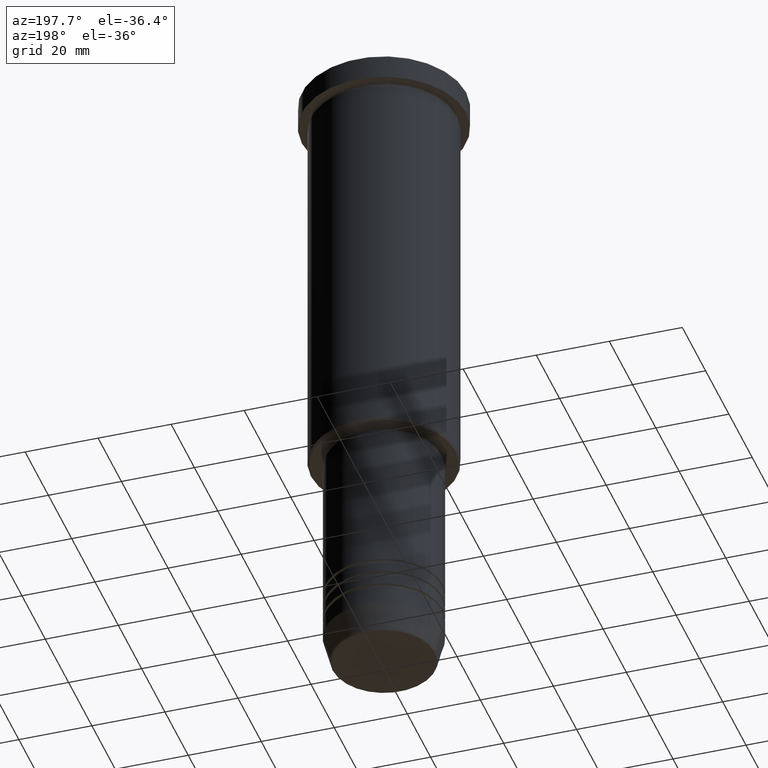
[diagram: clean part render]
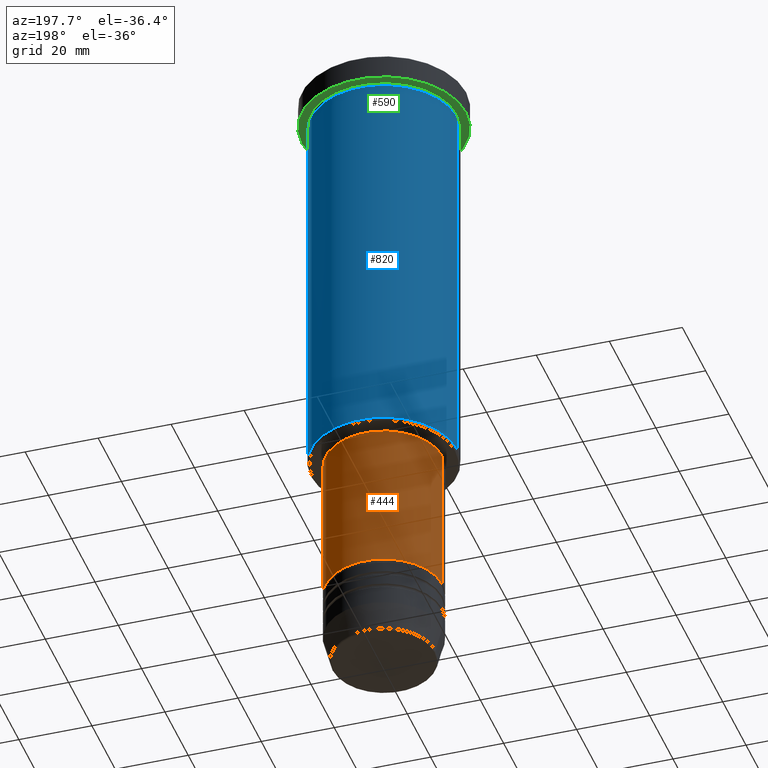
[diagram: same view with three faces highlighted in distinct colors, each labeled with its STEP entity id]
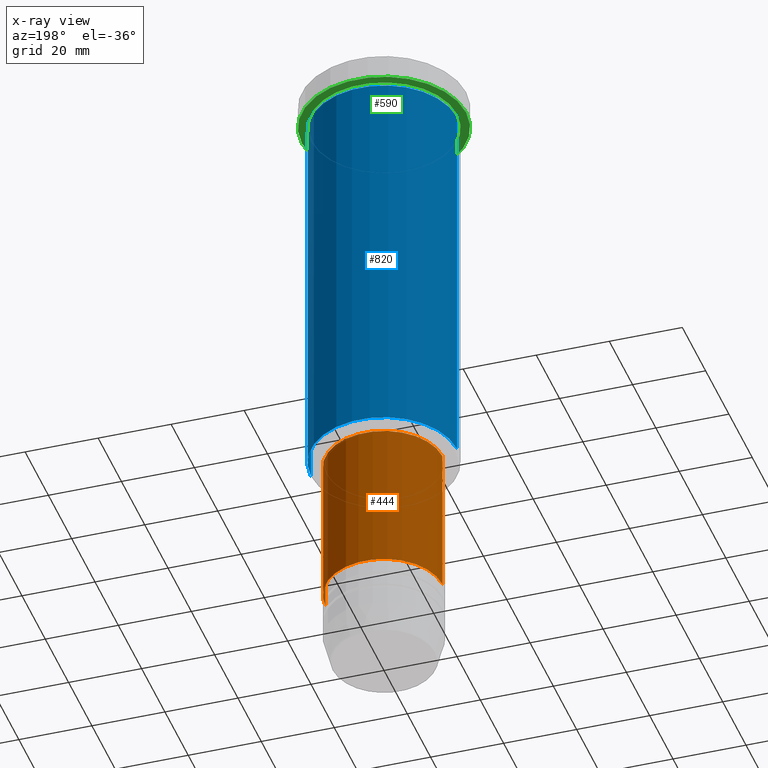
[diagram: x-ray of the same camera — body ghosted, the three highlighted faces saturated]
A machine part, auxiliary view with three faces highlighted in distinct colors.
The next image is the same camera in x-ray (body ghosted, the three faces saturated) — at least one of them is partly hidden behind the body in this view.
Their STEP definitions:

[orange] entity #444 — the highlighted cylindrical surface (partial cylindrical patch) has radius 16 mm, axis along (-0, -0, 1).
#110 = CARTESIAN_POINT ( 'NONE',  ( -16.00000000000000000, 1.959434878635765131E-15, 0.000000000000000000 ) ) ;
#115 = ORIENTED_EDGE ( 'NONE', *, *, #794, .T. ) ;
#134 = DIRECTION ( 'NONE',  ( 1.000000000000000000, 0.000000000000000000, 0.000000000000000000 ) ) ;
#196 = VECTOR ( 'NONE', #1005, 1000.000000000000000 ) ;
#248 = ORIENTED_EDGE ( 'NONE', *, *, #333, .T. ) ;
#333 = EDGE_CURVE ( 'NONE', #1024, #402, #928, .T. ) ;
#383 = DIRECTION ( 'NONE',  ( 1.000000000000000000, 0.000000000000000000, 0.000000000000000000 ) ) ;
#402 = VERTEX_POINT ( 'NONE', #569 ) ;
#414 = CARTESIAN_POINT ( 'NONE',  ( -16.00000000000000000, 1.959434878635765131E-15, -158.5000000000000000 ) ) ;
#433 = CARTESIAN_POINT ( 'NONE',  ( 16.00000000000000000, 0.000000000000000000, -158.5000000000000000 ) ) ;
#444 = ADVANCED_FACE ( 'NONE', ( #960 ), #579, .T. ) ;
#453 = AXIS2_PLACEMENT_3D ( 'NONE', #1039, #955, #134 ) ;
#515 = CARTESIAN_POINT ( 'NONE',  ( 16.00000000000000000, 0.000000000000000000, 0.000000000000000000 ) ) ;
#559 = CARTESIAN_POINT ( 'NONE',  ( 16.00000000000000000, 0.000000000000000000, -117.0000000000000142 ) ) ;
#567 = DIRECTION ( 'NONE',  ( -0.000000000000000000, -0.000000000000000000, 1.000000000000000000 ) ) ;
#569 = CARTESIAN_POINT ( 'NONE',  ( -16.00000000000000000, 1.959434878635765131E-15, -117.0000000000000142 ) ) ;
#579 = CYLINDRICAL_SURFACE ( 'NONE', #453, 16.00000000000000000 ) ;
#583 = CARTESIAN_POINT ( 'NONE',  ( 0.000000000000000000, 0.000000000000000000, -117.0000000000000142 ) ) ;
#653 = DIRECTION ( 'NONE',  ( 1.000000000000000000, 0.000000000000000000, 0.000000000000000000 ) ) ;
#689 = VERTEX_POINT ( 'NONE', #433 ) ;
#699 = AXIS2_PLACEMENT_3D ( 'NONE', #583, #567, #653 ) ;
#701 = VECTOR ( 'NONE', #1068, 1000.000000000000000 ) ;
#794 = EDGE_CURVE ( 'NONE', #689, #1024, #1158, .T. ) ;
#801 = VERTEX_POINT ( 'NONE', #559 ) ;
#802 = EDGE_CURVE ( 'NONE', #801, #402, #1012, .T. ) ;
#859 = DIRECTION ( 'NONE',  ( -0.000000000000000000, -0.000000000000000000, 1.000000000000000000 ) ) ;
#866 = ORIENTED_EDGE ( 'NONE', *, *, #1018, .F. ) ;
#928 = LINE ( 'NONE', #110, #196 ) ;
#955 = DIRECTION ( 'NONE',  ( -0.000000000000000000, -0.000000000000000000, 1.000000000000000000 ) ) ;
#958 = LINE ( 'NONE', #515, #701 ) ;
#959 = EDGE_LOOP ( 'NONE', ( #115, #248, #1067, #866 ) ) ;
#960 = FACE_OUTER_BOUND ( 'NONE', #959, .T. ) ;
#1005 = DIRECTION ( 'NONE',  ( -0.000000000000000000, -0.000000000000000000, 1.000000000000000000 ) ) ;
#1012 = CIRCLE ( 'NONE', #699, 16.00000000000000000 ) ;
#1018 = EDGE_CURVE ( 'NONE', #689, #801, #958, .T. ) ;
#1024 = VERTEX_POINT ( 'NONE', #414 ) ;
#1038 = CARTESIAN_POINT ( 'NONE',  ( 0.000000000000000000, 0.000000000000000000, -158.5000000000000000 ) ) ;
#1039 = CARTESIAN_POINT ( 'NONE',  ( 0.000000000000000000, 0.000000000000000000, 0.000000000000000000 ) ) ;
#1067 = ORIENTED_EDGE ( 'NONE', *, *, #802, .F. ) ;
#1068 = DIRECTION ( 'NONE',  ( -0.000000000000000000, -0.000000000000000000, 1.000000000000000000 ) ) ;
#1138 = AXIS2_PLACEMENT_3D ( 'NONE', #1038, #859, #383 ) ;
#1158 = CIRCLE ( 'NONE', #1138, 16.00000000000000000 ) ;

[blue] entity #820 — the highlighted cylindrical surface (partial cylindrical patch) has radius 20 mm, axis along (-0, -0, 1).
#1 = LINE ( 'NONE', #353, #578 ) ;
#17 = DIRECTION ( 'NONE',  ( -0.000000000000000000, -0.000000000000000000, 1.000000000000000000 ) ) ;
#70 = CARTESIAN_POINT ( 'NONE',  ( 0.000000000000000000, 0.000000000000000000, -7.999999999999994671 ) ) ;
#71 = AXIS2_PLACEMENT_3D ( 'NONE', #813, #17, #1095 ) ;
#133 = EDGE_LOOP ( 'NONE', ( #286, #679, #523, #979 ) ) ;
#195 = VERTEX_POINT ( 'NONE', #898 ) ;
#197 = FACE_OUTER_BOUND ( 'NONE', #133, .T. ) ;
#215 = DIRECTION ( 'NONE',  ( 1.000000000000000000, 0.000000000000000000, 0.000000000000000000 ) ) ;
#245 = EDGE_CURVE ( 'NONE', #195, #861, #573, .T. ) ;
#264 = CARTESIAN_POINT ( 'NONE',  ( -20.00000000000000355, 2.449293598294706907E-15, -115.5000000000000142 ) ) ;
#269 = EDGE_CURVE ( 'NONE', #462, #651, #592, .T. ) ;
#273 = LINE ( 'NONE', #432, #951 ) ;
#286 = ORIENTED_EDGE ( 'NONE', *, *, #269, .T. ) ;
#353 = CARTESIAN_POINT ( 'NONE',  ( -20.00000000000000355, 2.449293598294706907E-15, 0.000000000000000000 ) ) ;
#432 = CARTESIAN_POINT ( 'NONE',  ( 20.00000000000000355, 0.000000000000000000, 0.000000000000000000 ) ) ;
#455 = AXIS2_PLACEMENT_3D ( 'NONE', #934, #754, #215 ) ;
#462 = VERTEX_POINT ( 'NONE', #710 ) ;
#475 = CARTESIAN_POINT ( 'NONE',  ( -20.00000000000000000, 2.449293598294706513E-15, -7.999999999999994671 ) ) ;
#523 = ORIENTED_EDGE ( 'NONE', *, *, #245, .F. ) ;
#527 = DIRECTION ( 'NONE',  ( -0.000000000000000000, -0.000000000000000000, 1.000000000000000000 ) ) ;
#573 = CIRCLE ( 'NONE', #595, 20.00000000000000000 ) ;
#578 = VECTOR ( 'NONE', #714, 1000.000000000000000 ) ;
#592 = CIRCLE ( 'NONE', #71, 20.00000000000000355 ) ;
#595 = AXIS2_PLACEMENT_3D ( 'NONE', #70, #1156, #600 ) ;
#600 = DIRECTION ( 'NONE',  ( 1.000000000000000000, 0.000000000000000000, 0.000000000000000000 ) ) ;
#651 = VERTEX_POINT ( 'NONE', #264 ) ;
#679 = ORIENTED_EDGE ( 'NONE', *, *, #1137, .T. ) ;
#710 = CARTESIAN_POINT ( 'NONE',  ( 20.00000000000000355, 0.000000000000000000, -115.5000000000000142 ) ) ;
#714 = DIRECTION ( 'NONE',  ( -0.000000000000000000, -0.000000000000000000, 1.000000000000000000 ) ) ;
#754 = DIRECTION ( 'NONE',  ( -0.000000000000000000, -0.000000000000000000, 1.000000000000000000 ) ) ;
#813 = CARTESIAN_POINT ( 'NONE',  ( 0.000000000000000000, 0.000000000000000000, -115.5000000000000142 ) ) ;
#820 = ADVANCED_FACE ( 'NONE', ( #197 ), #833, .T. ) ;
#833 = CYLINDRICAL_SURFACE ( 'NONE', #455, 20.00000000000000355 ) ;
#861 = VERTEX_POINT ( 'NONE', #475 ) ;
#898 = CARTESIAN_POINT ( 'NONE',  ( 20.00000000000000000, 0.000000000000000000, -7.999999999999994671 ) ) ;
#934 = CARTESIAN_POINT ( 'NONE',  ( 0.000000000000000000, 0.000000000000000000, 0.000000000000000000 ) ) ;
#951 = VECTOR ( 'NONE', #527, 1000.000000000000000 ) ;
#979 = ORIENTED_EDGE ( 'NONE', *, *, #1145, .F. ) ;
#1095 = DIRECTION ( 'NONE',  ( -1.000000000000000000, 0.000000000000000000, 0.000000000000000000 ) ) ;
#1137 = EDGE_CURVE ( 'NONE', #651, #861, #1, .T. ) ;
#1145 = EDGE_CURVE ( 'NONE', #462, #195, #273, .T. ) ;
#1156 = DIRECTION ( 'NONE',  ( -0.000000000000000000, -0.000000000000000000, 1.000000000000000000 ) ) ;

[green] entity #590 — the highlighted planar face has unit normal (0, 0, -1).
#7 = AXIS2_PLACEMENT_3D ( 'NONE', #89, #919, #552 ) ;
#12 = EDGE_CURVE ( 'NONE', #935, #1140, #732, .T. ) ;
#75 = DIRECTION ( 'NONE',  ( -0.000000000000000000, -0.000000000000000000, 1.000000000000000000 ) ) ;
#89 = CARTESIAN_POINT ( 'NONE',  ( 0.000000000000000000, 0.000000000000000000, -6.999999999999995559 ) ) ;
#99 = DIRECTION ( 'NONE',  ( 1.000000000000000000, 0.000000000000000000, 0.000000000000000000 ) ) ;
#132 = DIRECTION ( 'NONE',  ( -1.000000000000000000, 0.000000000000000000, 0.000000000000000000 ) ) ;
#144 = FACE_OUTER_BOUND ( 'NONE', #302, .T. ) ;
#236 = AXIS2_PLACEMENT_3D ( 'NONE', #706, #280, #99 ) ;
#249 = EDGE_CURVE ( 'NONE', #478, #1120, #1097, .T. ) ;
#274 = CIRCLE ( 'NONE', #650, 20.00000000000000000 ) ;
#280 = DIRECTION ( 'NONE',  ( -0.000000000000000000, -0.000000000000000000, 1.000000000000000000 ) ) ;
#302 = EDGE_LOOP ( 'NONE', ( #836, #582 ) ) ;
#318 = EDGE_CURVE ( 'NONE', #1120, #478, #811, .T. ) ;
#340 = ORIENTED_EDGE ( 'NONE', *, *, #740, .T. ) ;
#345 = CARTESIAN_POINT ( 'NONE',  ( 0.000000000000000000, 0.000000000000000000, -6.999999999999995559 ) ) ;
#352 = PLANE ( 'NONE',  #518 ) ;
#429 = DIRECTION ( 'NONE',  ( 0.000000000000000000, 0.000000000000000000, -1.000000000000000000 ) ) ;
#456 = DIRECTION ( 'NONE',  ( -0.000000000000000000, -0.000000000000000000, 1.000000000000000000 ) ) ;
#478 = VERTEX_POINT ( 'NONE', #507 ) ;
#487 = CARTESIAN_POINT ( 'NONE',  ( 20.00000000000000000, 2.449293598294706513E-15, -6.999999999999995559 ) ) ;
#507 = CARTESIAN_POINT ( 'NONE',  ( 22.50000000000000000, 0.000000000000000000, -6.999999999999995559 ) ) ;
#518 = AXIS2_PLACEMENT_3D ( 'NONE', #1183, #429, #911 ) ;
#526 = DIRECTION ( 'NONE',  ( -1.000000000000000000, 0.000000000000000000, 0.000000000000000000 ) ) ;
#552 = DIRECTION ( 'NONE',  ( 1.000000000000000000, 0.000000000000000000, 0.000000000000000000 ) ) ;
#572 = AXIS2_PLACEMENT_3D ( 'NONE', #345, #75, #526 ) ;
#582 = ORIENTED_EDGE ( 'NONE', *, *, #318, .F. ) ;
#590 = ADVANCED_FACE ( 'NONE', ( #1056, #144 ), #352, .T. ) ;
#604 = ORIENTED_EDGE ( 'NONE', *, *, #12, .T. ) ;
#650 = AXIS2_PLACEMENT_3D ( 'NONE', #759, #456, #132 ) ;
#706 = CARTESIAN_POINT ( 'NONE',  ( 0.000000000000000000, 0.000000000000000000, -6.999999999999995559 ) ) ;
#732 = CIRCLE ( 'NONE', #572, 20.00000000000000000 ) ;
#740 = EDGE_CURVE ( 'NONE', #1140, #935, #274, .T. ) ;
#759 = CARTESIAN_POINT ( 'NONE',  ( 0.000000000000000000, 0.000000000000000000, -6.999999999999995559 ) ) ;
#811 = CIRCLE ( 'NONE', #7, 22.50000000000000000 ) ;
#836 = ORIENTED_EDGE ( 'NONE', *, *, #249, .F. ) ;
#911 = DIRECTION ( 'NONE',  ( -1.000000000000000000, 0.000000000000000000, -0.000000000000000000 ) ) ;
#917 = CARTESIAN_POINT ( 'NONE',  ( -22.50000000000000000, 2.755455298081544778E-15, -6.999999999999995559 ) ) ;
#919 = DIRECTION ( 'NONE',  ( -0.000000000000000000, -0.000000000000000000, 1.000000000000000000 ) ) ;
#935 = VERTEX_POINT ( 'NONE', #487 ) ;
#976 = EDGE_LOOP ( 'NONE', ( #340, #604 ) ) ;
#1056 = FACE_BOUND ( 'NONE', #976, .T. ) ;
#1083 = CARTESIAN_POINT ( 'NONE',  ( -20.00000000000000000, 0.000000000000000000, -6.999999999999995559 ) ) ;
#1097 = CIRCLE ( 'NONE', #236, 22.50000000000000000 ) ;
#1120 = VERTEX_POINT ( 'NONE', #917 ) ;
#1140 = VERTEX_POINT ( 'NONE', #1083 ) ;
#1183 = CARTESIAN_POINT ( 'NONE',  ( 0.000000000000000000, 22.50000000000000000, -6.999999999999995559 ) ) ;